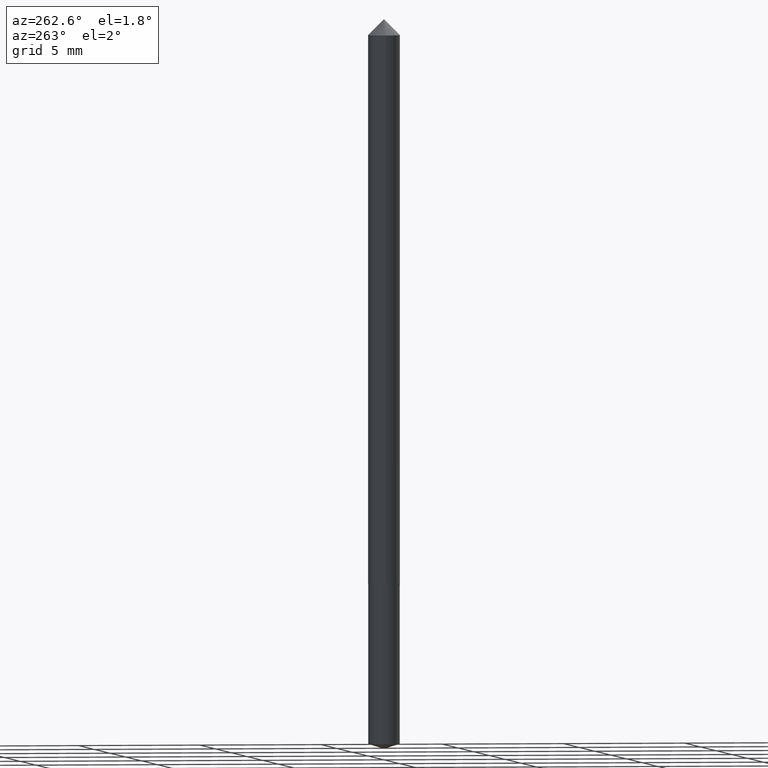
[diagram: clean part render]
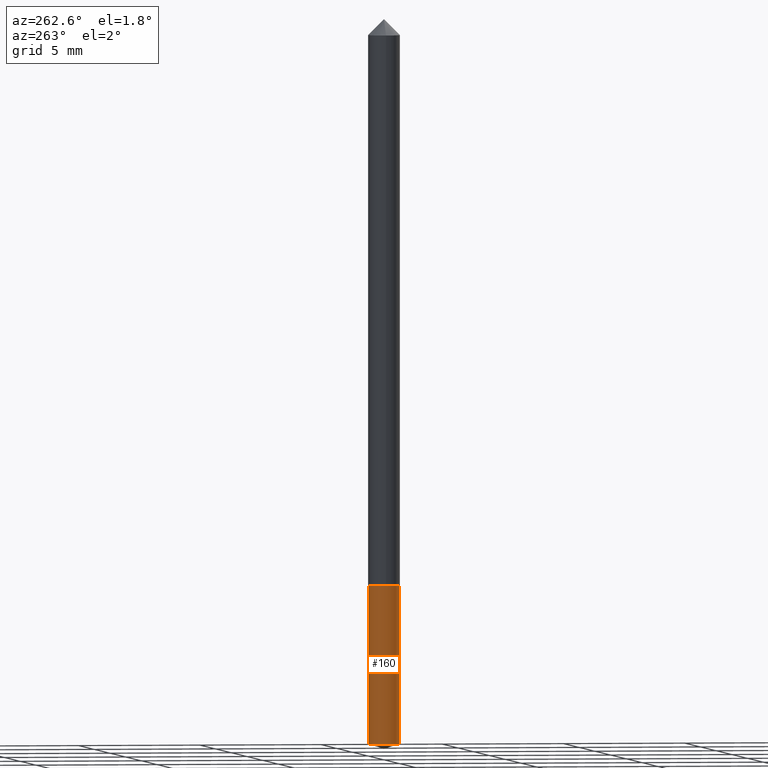
[diagram: same view with one face highlighted and labeled with its STEP entity id]
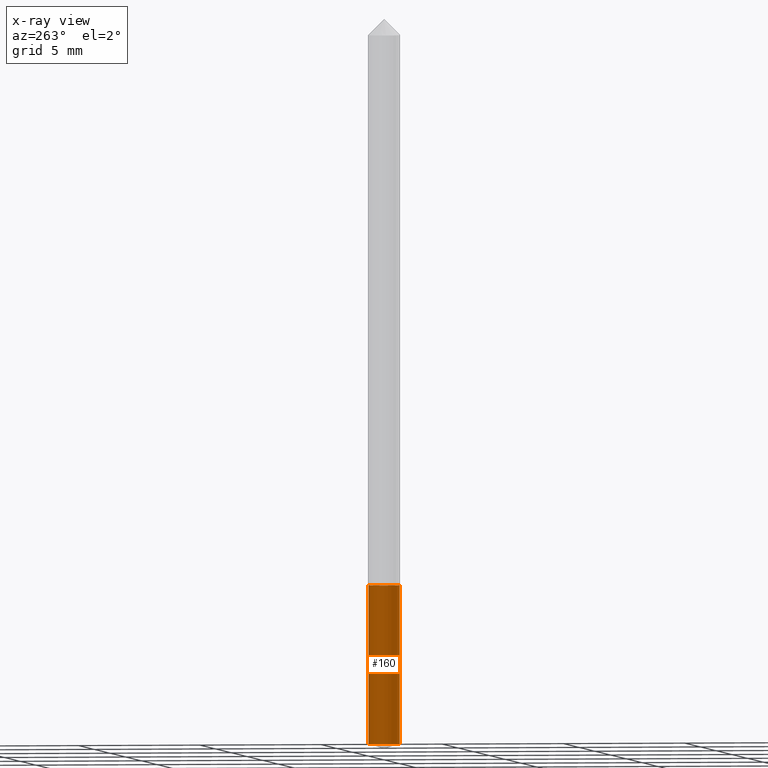
[diagram: x-ray of the same camera — body ghosted, the highlighted face saturated]
A machine part, auxiliary view. The second image highlights one B-rep face of the part: STEP entity #160.
The next image is the same camera in x-ray: the body ghosted, the highlighted face saturated — about 0% of this face is hidden behind the body in this view.
In plain terms, the highlighted cylindrical surface (edge-blend (fillet) strip) has radius 0.6502 mm, axis along (-0, 0, 1).
Its self-contained STEP definition (entity closure, byte-faithful):
#5 = CARTESIAN_POINT ( 'NONE',  ( 2.243228535913626021E-29, -3.202735832120817848E-15, -0.9173000000000001153 ) ) ;
#12 = ORIENTED_EDGE ( 'NONE', *, *, #98, .F. ) ;
#22 = CARTESIAN_POINT ( 'NONE',  ( 1.818989403546143265E-16, 0.02559999999999589687, -1.173028351004698377 ) ) ;
#23 = VERTEX_POINT ( 'NONE', #22 ) ;
#25 = CIRCLE ( 'NONE', #179, 0.02560000000000000470 ) ;
#27 = VECTOR ( 'NONE', #122, 39.37007874015748143 ) ;
#33 = CYLINDRICAL_SURFACE ( 'NONE', #228, 0.02560000000000000470 ) ;
#34 = EDGE_LOOP ( 'NONE', ( #106, #107, #279, #12 ) ) ;
#56 = DIRECTION ( 'NONE',  ( -6.982962677686265133E-15, -1.000000000000000000, 5.335640612625512847E-15 ) ) ;
#60 = VERTEX_POINT ( 'NONE', #350 ) ;
#66 = EDGE_CURVE ( 'NONE', #108, #60, #102, .T. ) ;
#68 = DIRECTION ( 'NONE',  ( -2.445337482800842001E-29, 3.491669401403918305E-15, 1.000000000000000000 ) ) ;
#72 = CARTESIAN_POINT ( 'NONE',  ( -1.787638445487459910E-16, -0.02560000000000320353, -0.9172999999999998932 ) ) ;
#98 = EDGE_CURVE ( 'NONE', #184, #60, #25, .T. ) ;
#102 = LINE ( 'NONE', #72, #27 ) ;
#106 = ORIENTED_EDGE ( 'NONE', *, *, #332, .F. ) ;
#107 = ORIENTED_EDGE ( 'NONE', *, *, #167, .T. ) ;
#108 = VERTEX_POINT ( 'NONE', #236 ) ;
#110 = DIRECTION ( 'NONE',  ( -2.445337482800842001E-29, 3.491669401403918305E-15, 1.000000000000000000 ) ) ;
#118 = DIRECTION ( 'NONE',  ( -2.445337482800842001E-29, 3.491669401403918700E-15, 1.000000000000000000 ) ) ;
#122 = DIRECTION ( 'NONE',  ( -2.445337482800842001E-29, 3.491669401403918700E-15, 1.000000000000000000 ) ) ;
#138 = AXIS2_PLACEMENT_3D ( 'NONE', #337, #334, #168 ) ;
#145 = CARTESIAN_POINT ( 'NONE',  ( 1.818989403546144004E-16, 0.02559999999999680240, -0.9173000000000002263 ) ) ;
#157 = CARTESIAN_POINT ( 'NONE',  ( 2.243228535913626021E-29, -3.202735832120817848E-15, -0.9173000000000001153 ) ) ;
#160 = ADVANCED_FACE ( 'NONE', ( #333 ), #33, .T. ) ;
#167 = EDGE_CURVE ( 'NONE', #23, #108, #340, .T. ) ;
#168 = DIRECTION ( 'NONE',  ( -6.982962677686265133E-15, -1.000000000000000000, 5.335640612625512847E-15 ) ) ;
#179 = AXIS2_PLACEMENT_3D ( 'NONE', #157, #68, #180 ) ;
#180 = DIRECTION ( 'NONE',  ( -6.982962677686265133E-15, -1.000000000000000000, 5.335640612625512847E-15 ) ) ;
#184 = VERTEX_POINT ( 'NONE', #145 ) ;
#228 = AXIS2_PLACEMENT_3D ( 'NONE', #5, #110, #56 ) ;
#233 = LINE ( 'NONE', #287, #330 ) ;
#236 = CARTESIAN_POINT ( 'NONE',  ( -1.787638445487397048E-16, -0.02560000000000409517, -1.173028351004697933 ) ) ;
#279 = ORIENTED_EDGE ( 'NONE', *, *, #66, .T. ) ;
#287 = CARTESIAN_POINT ( 'NONE',  ( 1.818989403546080895E-16, 0.02559999999999680240, -0.9173000000000002263 ) ) ;
#330 = VECTOR ( 'NONE', #118, 39.37007874015748143 ) ;
#332 = EDGE_CURVE ( 'NONE', #23, #184, #233, .T. ) ;
#333 = FACE_OUTER_BOUND ( 'NONE', #34, .T. ) ;
#334 = DIRECTION ( 'NONE',  ( -2.445337482800842001E-29, 3.491669401403918305E-15, 1.000000000000000000 ) ) ;
#337 = CARTESIAN_POINT ( 'NONE',  ( 2.868570658040264674E-29, -4.095654690395403261E-15, -1.173028351004698155 ) ) ;
#340 = CIRCLE ( 'NONE', #138, 0.02560000000000000470 ) ;
#350 = CARTESIAN_POINT ( 'NONE',  ( -1.787638445487459910E-16, -0.02560000000000320353, -0.9172999999999998932 ) ) ;